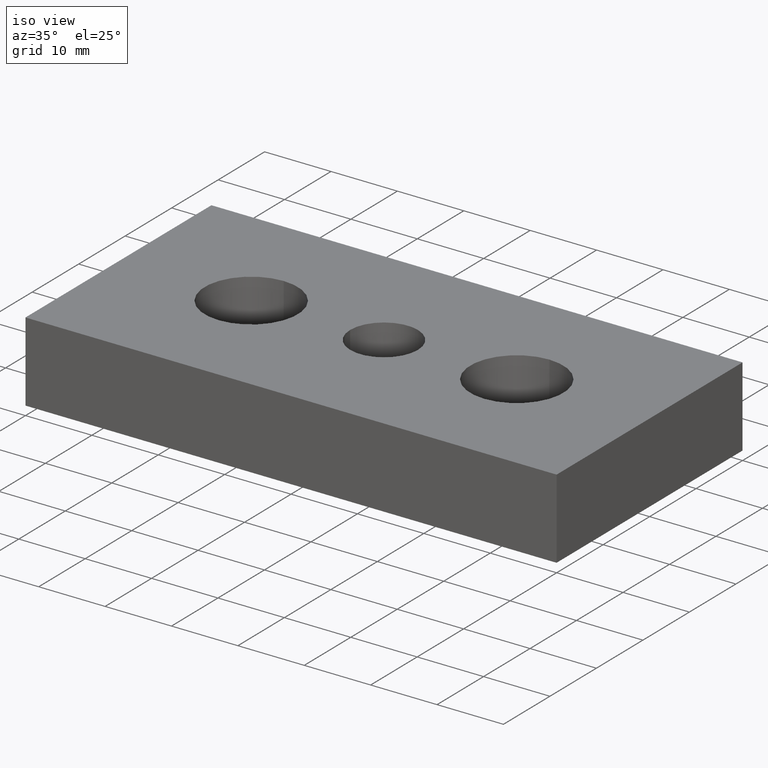
[diagram: clean part render]
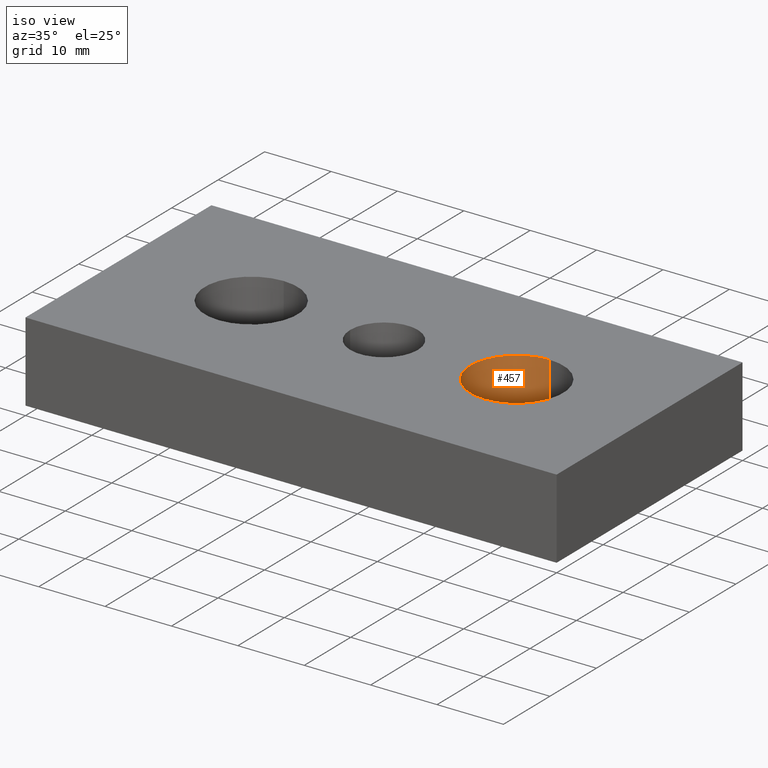
[diagram: same view with one face highlighted and labeled with its STEP entity id]
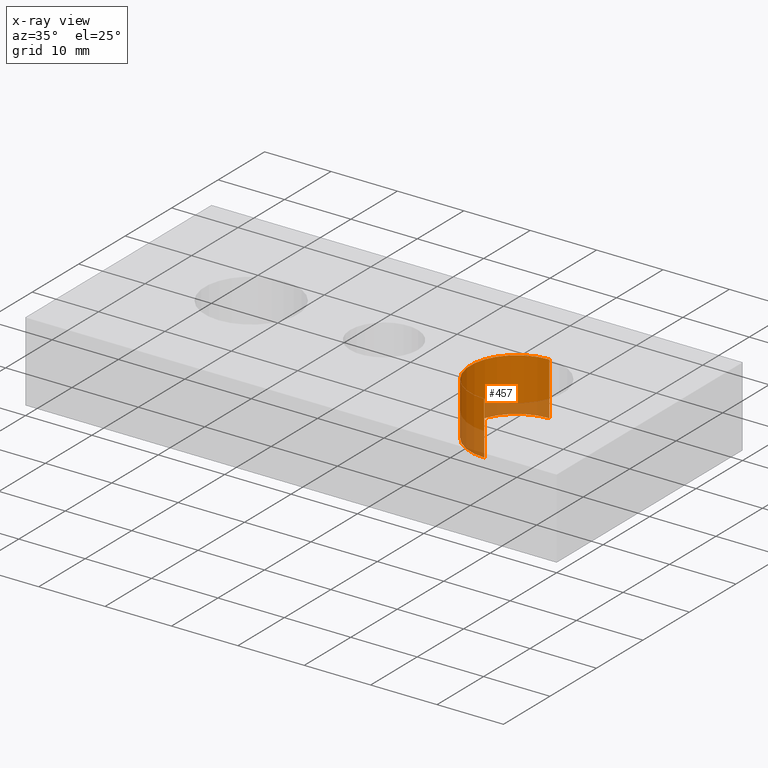
[diagram: x-ray of the same camera — body ghosted, the highlighted face saturated]
A machine part, iso view. The second image highlights one B-rep face of the part: STEP entity #457.
The next image is the same camera in x-ray: the body ghosted, the highlighted face saturated — about 26% of this face is hidden behind the body in this view.
In plain terms, the highlighted cylindrical surface (partial cylindrical patch) has radius 7 mm, axis along (0, 0, -1).
Its self-contained STEP definition (entity closure, byte-faithful):
#175=CARTESIAN_POINT('',(-19.999999999999996,6.999999999999991,12.0));
#176=VERTEX_POINT('',#175);
#177=CARTESIAN_POINT('',(-19.999999999999996,-7.000000000000007,12.0));
#178=VERTEX_POINT('',#177);
#186=CARTESIAN_POINT('',(-19.999999999999996,6.999999999999991,4.0));
#187=VERTEX_POINT('',#186);
#188=CARTESIAN_POINT('',(-19.999999999999996,6.999999999999991,12.0));
#189=DIRECTION('',(0.0,0.0,-1.0));
#190=VECTOR('',#189,8.0);
#191=LINE('',#188,#190);
#192=EDGE_CURVE('',#176,#187,#191,.T.);
#194=CARTESIAN_POINT('',(-19.999999999999996,-7.000000000000007,4.0));
#195=VERTEX_POINT('',#194);
#203=CARTESIAN_POINT('',(-19.999999999999996,-7.000000000000007,12.0));
#204=DIRECTION('',(0.0,0.0,-1.0));
#205=VECTOR('',#204,8.0);
#206=LINE('',#203,#205);
#207=EDGE_CURVE('',#178,#195,#206,.T.);
#399=CARTESIAN_POINT('',(-19.999999999999996,-8.881784E-015,12.0));
#400=DIRECTION('',(0.0,0.0,-1.0));
#401=DIRECTION('',(0.0,-1.0,0.0));
#402=AXIS2_PLACEMENT_3D('',#399,#400,#401);
#403=CIRCLE('',#402,6.999999999999997);
#404=EDGE_CURVE('',#178,#176,#403,.T.);
#426=CARTESIAN_POINT('',(-19.999999999999996,-8.881784E-015,4.0));
#427=DIRECTION('',(0.0,0.0,1.0));
#428=DIRECTION('',(0.0,-1.0,0.0));
#429=AXIS2_PLACEMENT_3D('',#426,#427,#428);
#430=CIRCLE('',#429,6.999999999999997);
#431=EDGE_CURVE('',#187,#195,#430,.T.);
#446=CARTESIAN_POINT('',(-19.999999999999996,-8.881784E-015,12.000000010000001));
#447=DIRECTION('',(0.0,0.0,-1.0));
#448=DIRECTION('',(1.0,0.0,0.0));
#449=AXIS2_PLACEMENT_3D('',#446,#447,#448);
#450=CYLINDRICAL_SURFACE('',#449,6.999999999999997);
#451=ORIENTED_EDGE('',*,*,#192,.F.);
#452=ORIENTED_EDGE('',*,*,#404,.F.);
#453=ORIENTED_EDGE('',*,*,#207,.T.);
#454=ORIENTED_EDGE('',*,*,#431,.F.);
#455=EDGE_LOOP('',(#451,#452,#453,#454));
#456=FACE_OUTER_BOUND('',#455,.T.);
#457=ADVANCED_FACE('',(#456),#450,.F.);